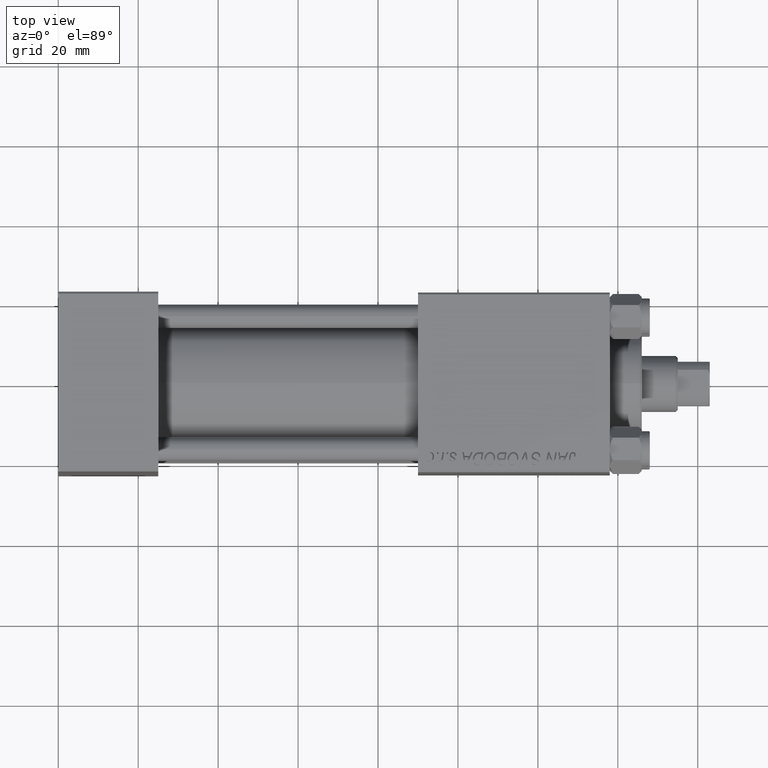
[diagram: clean part render]
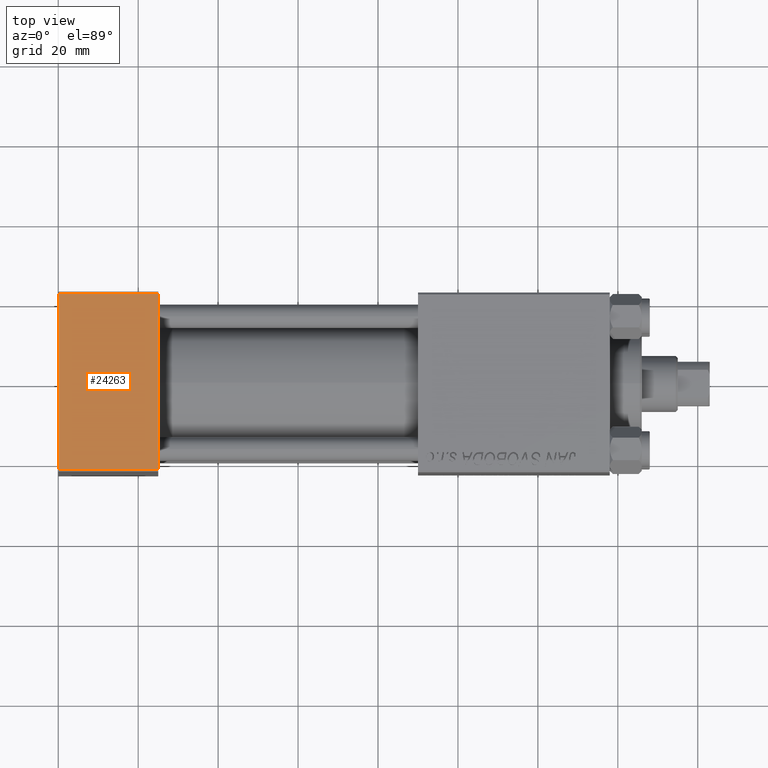
[diagram: same view with one face highlighted and labeled with its STEP entity id]
A machine part, top view. The second image highlights one B-rep face of the part: STEP entity #24263.
In plain terms, the highlighted planar face has unit normal (0, 0, -1).
Its self-contained STEP definition (entity closure, byte-faithful):
#2063 = EDGE_CURVE ( 'NONE', #39031, #30256, #40263, .T. ) ;
#4475 = EDGE_CURVE ( 'NONE', #30256, #37779, #22841, .T. ) ;
#5451 = FACE_OUTER_BOUND ( 'NONE', #30635, .T. ) ;
#9045 = CARTESIAN_POINT ( 'NONE',  ( 0.000000000000000000, 22.00000000000000355, 35.00000000000000711 ) ) ;
#9685 = VECTOR ( 'NONE', #47922, 1000.000000000000000 ) ;
#12107 = DIRECTION ( 'NONE',  ( 0.000000000000000000, -1.000000000000000000, -1.541976423090495387E-16 ) ) ;
#13998 = CARTESIAN_POINT ( 'NONE',  ( 25.00000000000000000, 22.00000000000000355, 35.00000000000000711 ) ) ;
#15657 = CARTESIAN_POINT ( 'NONE',  ( 0.000000000000000000, 22.00000000000000355, 35.00000000000000711 ) ) ;
#16576 = VECTOR ( 'NONE', #12107, 1000.000000000000000 ) ;
#17227 = CARTESIAN_POINT ( 'NONE',  ( 0.000000000000000000, -21.99999999999998934, 35.00000000000000000 ) ) ;
#18854 = EDGE_CURVE ( 'NONE', #19152, #39031, #27553, .T. ) ;
#19152 = VERTEX_POINT ( 'NONE', #13998 ) ;
#20320 = DIRECTION ( 'NONE',  ( 0.000000000000000000, -1.000000000000000000, -1.541976423090495387E-16 ) ) ;
#22841 = LINE ( 'NONE', #49360, #49631 ) ;
#24263 = ADVANCED_FACE ( 'NONE', ( #5451 ), #28436, .F. ) ;
#25829 = CARTESIAN_POINT ( 'NONE',  ( 25.00000000000000000, -21.99999999999998934, 35.00000000000000000 ) ) ;
#27513 = LINE ( 'NONE', #38885, #16576 ) ;
#27553 = LINE ( 'NONE', #9045, #9685 ) ;
#28154 = CARTESIAN_POINT ( 'NONE',  ( 0.000000000000000000, 22.50000000000000355, 35.00000000000000711 ) ) ;
#28436 = PLANE ( 'NONE',  #30801 ) ;
#30256 = VERTEX_POINT ( 'NONE', #17227 ) ;
#30635 = EDGE_LOOP ( 'NONE', ( #35056, #32676, #36542, #36563 ) ) ;
#30801 = AXIS2_PLACEMENT_3D ( 'NONE', #30814, #31060, #42182 ) ;
#30814 = CARTESIAN_POINT ( 'NONE',  ( 25.00000000000000000, 22.50000000000000355, 35.00000000000000711 ) ) ;
#31060 = DIRECTION ( 'NONE',  ( 0.000000000000000000, 1.541976423090495387E-16, -1.000000000000000000 ) ) ;
#32676 = ORIENTED_EDGE ( 'NONE', *, *, #4475, .T. ) ;
#35056 = ORIENTED_EDGE ( 'NONE', *, *, #2063, .T. ) ;
#36542 = ORIENTED_EDGE ( 'NONE', *, *, #47879, .F. ) ;
#36563 = ORIENTED_EDGE ( 'NONE', *, *, #18854, .T. ) ;
#37779 = VERTEX_POINT ( 'NONE', #25829 ) ;
#38885 = CARTESIAN_POINT ( 'NONE',  ( 25.00000000000000000, 22.50000000000000355, 35.00000000000000711 ) ) ;
#39031 = VERTEX_POINT ( 'NONE', #15657 ) ;
#40263 = LINE ( 'NONE', #28154, #41489 ) ;
#41489 = VECTOR ( 'NONE', #20320, 1000.000000000000000 ) ;
#42182 = DIRECTION ( 'NONE',  ( 0.000000000000000000, 1.000000000000000000, 1.541976423090495387E-16 ) ) ;
#45826 = DIRECTION ( 'NONE',  ( 1.000000000000000000, 0.000000000000000000, 0.000000000000000000 ) ) ;
#47879 = EDGE_CURVE ( 'NONE', #19152, #37779, #27513, .T. ) ;
#47922 = DIRECTION ( 'NONE',  ( -1.000000000000000000, 0.000000000000000000, 0.000000000000000000 ) ) ;
#49360 = CARTESIAN_POINT ( 'NONE',  ( 25.00000000000000000, -22.00000000000000355, 35.00000000000000000 ) ) ;
#49631 = VECTOR ( 'NONE', #45826, 1000.000000000000000 ) ;